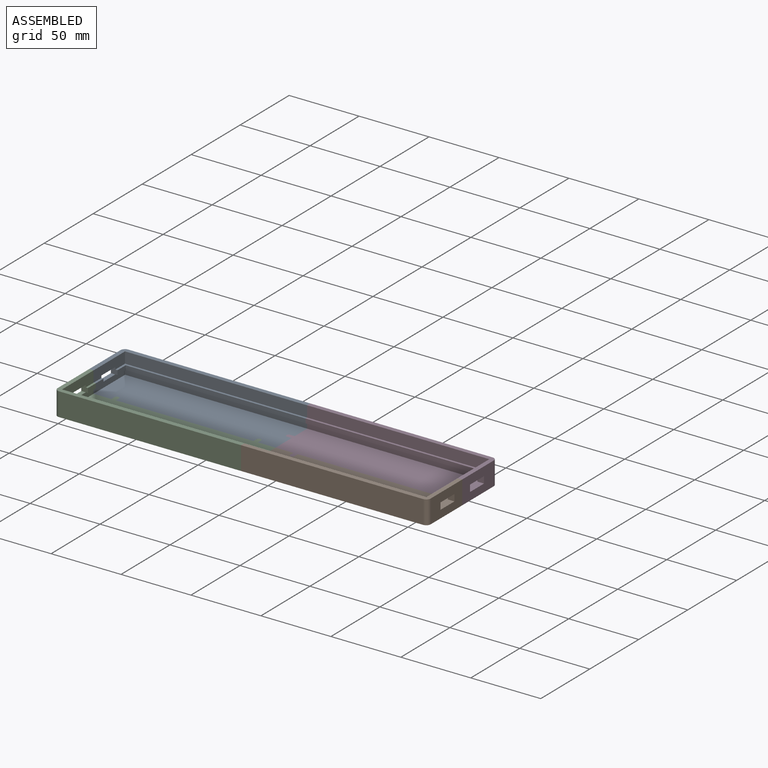
[diagram: assembled view]
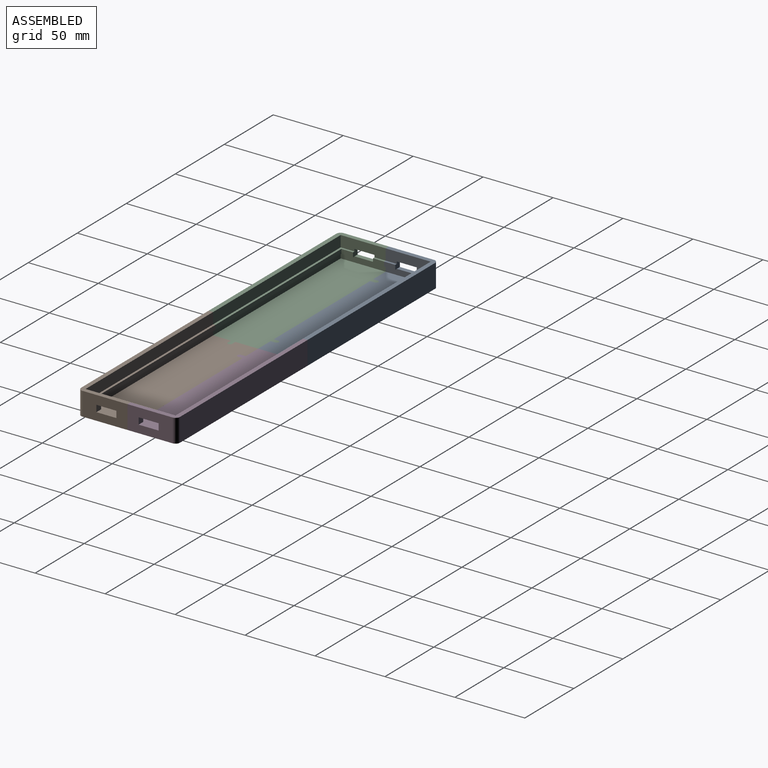
[diagram: assembled view, second angle]
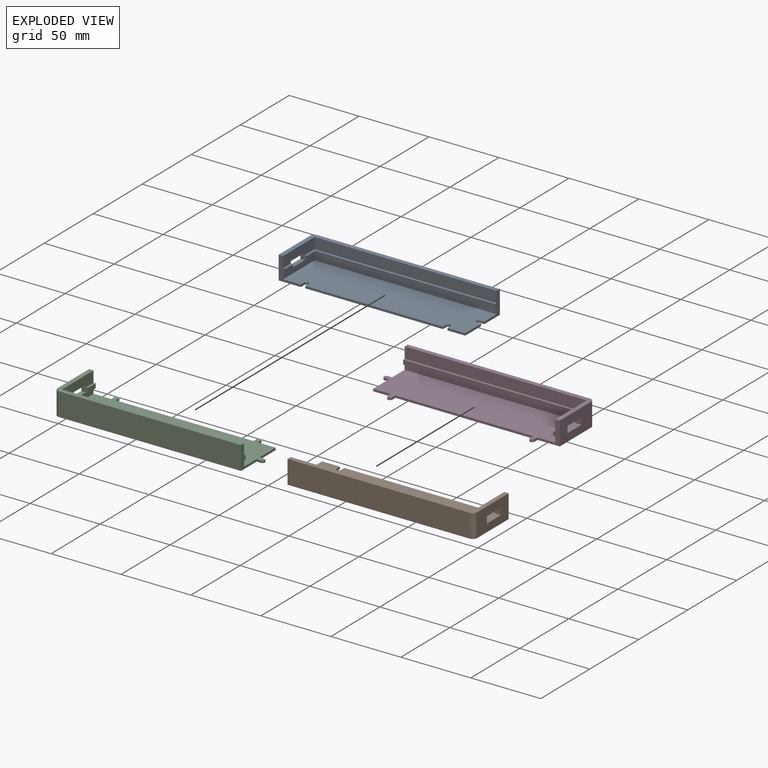
[diagram: exploded view]
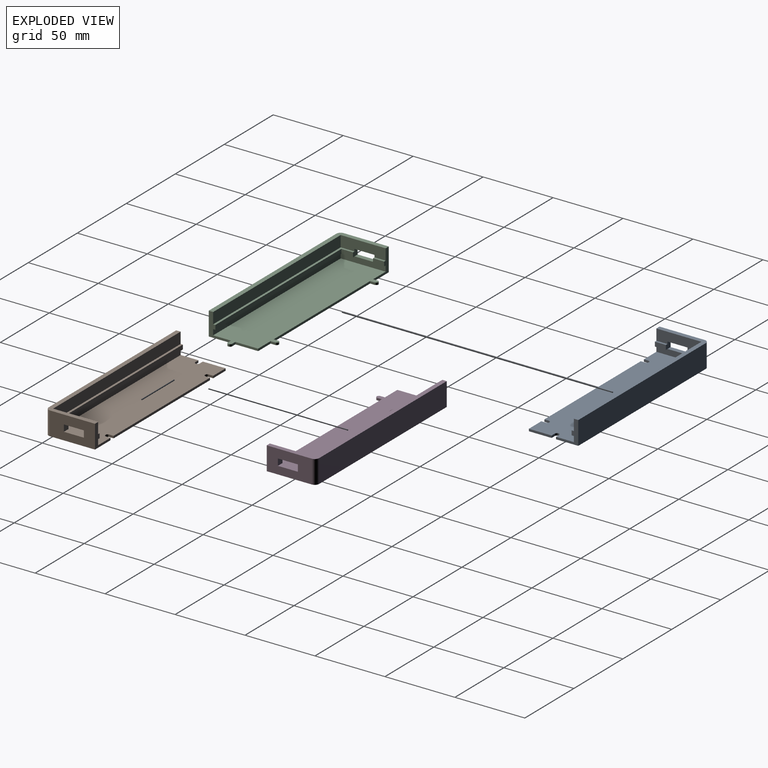
[diagram: exploded view, second angle]
ASSEMBLY  parts=4 mates=3
PART A: 35 faces, bbox 133.4x35.3x16.7 mm
  f0: plane 32.15x16.67mm, normal (-1,0,0), area 467.8mm2, adj f5,f8,f17,f18,f31,f32,f33,f34
  f1: plane 130.18x9.92mm, normal (0,0,-1), area 219.9mm2, adj f9,f11,f12,f13,f21,f32
  f2: plane 7.94x1.59mm, normal (0,0,1), area 12.6mm2, adj f3,f5,f10,f34
  f3: plane 7.94x3.18mm, normal (1,0,0), area 25.2mm2, adj f2,f5,f19,f34
  f4: plane 16.27x1.59mm, normal (1,0,0), area 25.8mm2, adj f7,f8,f14,f24
  f5: plane 16.67x15.88mm, normal (0,-1,0), area 78.1mm2, adj f0,f2,f3,f7,f8,f9,f10,f18
  f6: plane 98.43x1.59mm, normal (0,-1,0), area 156.2mm2, adj f7,f8,f27,f30
  f7: plane 130.18x32.15mm, normal (0,0,1), area 4142.6mm2, adj f4,f5,f6,f9,f12,f13,f14,f22
  f8: plane 133.35x35.32mm, normal (0,0,-1), area 4665.9mm2, adj f0,f4,f5,f6,f13,f14,f16,f17
  f9: plane 32.15x3.97mm, normal (1,0,0), area 127.6mm2, adj f1,f5,f7,f12,f19,f33
  f10: plane 32.15x7.94mm, normal (1,0,0), area 232.5mm2, adj f2,f5,f15,f18,f20,f31,f32,f34
  f11: plane 128.59x3.18mm, normal (0,-1,0), area 408.3mm2, adj f1,f13,f20,f21
  f12: plane 130.18x3.97mm, normal (0,-1,0), area 516.6mm2, adj f1,f7,f9,f13
  f13: plane 16.67x15.88mm, normal (1,0,0), area 78.1mm2, adj f1,f7,f8,f11,f12,f15,f16,f18
  f14: plane 12.7x1.59mm, normal (0,-1,0), area 20.2mm2, adj f4,f7,f8,f25
  f15: plane 130.18x7.94mm, normal (0,-1,0), area 1033.3mm2, adj f10,f13,f18,f20
  f16: plane 130.18x16.67mm, normal (0,1,0), area 2169.9mm2, adj f8,f13,f17,f18
  f17: cylinder r=3.17mm len=16.67mm, axis (0,0,-1), area 83.1mm2, adj f0,f8,f16,f18
  f18: plane 133.35x35.32mm, normal (0,0,1), area 523.3mm2, adj f0,f5,f10,f13,f15,f16,f17
  f19: plane 7.94x1.59mm, normal (0,0,-1), area 12.6mm2, adj f3,f5,f9,f34
  f20: plane 130.18x9.92mm, normal (0,0,1), area 219.9mm2, adj f10,f11,f13,f15,f21,f32
  f21: plane 8.33x3.18mm, normal (1,0,0), area 26.5mm2, adj f1,f11,f20,f32
  f22: plane 3.18x1.59mm, normal (0,-1,0), area 5mm2, adj f7,f8,f13,f23
  f23: cylinder r=1.59mm len=3.18mm, axis (0,0,1), area 7.9mm2, adj f7,f8,f22,f24
  f24: plane 3.18x1.59mm, normal (0,1,0), area 5mm2, adj f4,f7,f8,f23
  f25: plane 3.18x1.59mm, normal (-1,0,0), area 5mm2, adj f7,f8,f14,f26
  f26: cylinder r=1.59mm len=3.18mm, axis (0,0,1), area 7.9mm2, adj f7,f8,f25,f27
  f27: plane 3.18x1.59mm, normal (1,0,0), area 5mm2, adj f6,f7,f8,f26
  f28: cylinder r=1.59mm len=3.18mm, axis (0,0,1), area 7.9mm2, adj f7,f8,f29,f30
  f29: plane 3.18x1.59mm, normal (1,0,0), area 5mm2, adj f5,f7,f8,f28
  f30: plane 3.18x1.59mm, normal (-1,0,0), area 5mm2, adj f6,f7,f8,f28
  f31: plane 14.29x3.18mm, normal (0,0,-1), area 45.4mm2, adj f0,f10,f32,f34
  f32: plane 4.76x4.76mm, normal (0,-1,0), area 20.2mm2, adj f0,f1,f10,f20,f21,f31,f33
  f33: plane 14.29x3.18mm, normal (0,0,1), area 45.4mm2, adj f0,f9,f32,f34
  f34: plane 4.76x4.76mm, normal (0,1,0), area 20.2mm2, adj f0,f2,f3,f10,f19,f31,f33
PART B: same geometry as A
PART C: 35 faces, bbox 138.1x40.1x16.7 mm
  f0: plane 32.15x16.67mm, normal (-1,0,0), area 467.8mm2, adj f6,f12,f15,f17,f31,f32,f33,f34
  f1: plane 7.95x1.59mm, normal (0,0,-1), area 12.6mm2, adj f6,f7,f21,f33
  f2: plane 130.18x9.91mm, normal (0,0,1), area 219.9mm2, adj f3,f4,f8,f13,f20,f34
  f3: plane 8.32x3.18mm, normal (1,0,0), area 26.4mm2, adj f2,f18,f20,f34
  f4: plane 16.67x15.88mm, normal (1,0,0), area 78.1mm2, adj f2,f8,f11,f12,f14,f16,f17,f18
  f5: plane 98.43x1.59mm, normal (0,1,0), area 156.2mm2, adj f11,f12,f22,f26
  f6: plane 16.67x15.88mm, normal (0,1,0), area 78.1mm2, adj f0,f1,f7,f11,f12,f13,f17,f19
  f7: plane 32.15x3.97mm, normal (1,0,0), area 127.6mm2, adj f1,f6,f11,f14,f18,f31
  f8: plane 130.18x7.94mm, normal (0,1,0), area 1033.3mm2, adj f2,f4,f13,f17
  f9: plane 16.27x1.59mm, normal (1,0,0), area 25.8mm2, adj f10,f11,f12,f29
  f10: plane 12.7x1.59mm, normal (0,1,0), area 20.2mm2, adj f9,f11,f12,f27
  f11: plane 134.94x36.91mm, normal (0,0,1), area 4226.8mm2, adj f4,f5,f6,f7,f9,f10,f14,f22
  f12: plane 138.11x40.08mm, normal (0,0,-1), area 4750.1mm2, adj f0,f4,f5,f6,f9,f10,f15,f16
  f13: plane 32.15x7.94mm, normal (1,0,0), area 232.5mm2, adj f2,f6,f8,f17,f19,f32,f33,f34
  f14: plane 130.18x3.97mm, normal (0,1,0), area 516.6mm2, adj f4,f7,f11,f18
  f15: cylinder r=3.17mm len=16.67mm, axis (0,0,-1), area 83.1mm2, adj f0,f12,f16,f17
  f16: plane 130.18x16.67mm, normal (0,-1,0), area 2169.9mm2, adj f4,f12,f15,f17
  f17: plane 133.35x35.32mm, normal (0,0,1), area 523.3mm2, adj f0,f4,f6,f8,f13,f15,f16
  f18: plane 130.18x9.91mm, normal (0,0,-1), area 219.9mm2, adj f3,f4,f7,f14,f20,f34
  f19: plane 7.95x1.59mm, normal (0,0,1), area 12.6mm2, adj f6,f13,f21,f33
  f20: plane 128.59x3.18mm, normal (0,1,0), area 408.3mm2, adj f2,f3,f4,f18
  f21: plane 7.95x3.18mm, normal (1,0,0), area 25.2mm2, adj f1,f6,f19,f33
  f22: plane 3.18x1.59mm, normal (1,0,0), area 5mm2, adj f5,f11,f12,f23
  f23: cylinder r=1.59mm len=3.18mm, axis (0,0,1), area 7.9mm2, adj f11,f12,f22,f24
  f24: plane 3.18x1.59mm, normal (-1,0,0), area 5mm2, adj f6,f11,f12,f23
  f25: cylinder r=1.59mm len=3.18mm, axis (0,0,1), area 7.9mm2, adj f11,f12,f26,f27
  f26: plane 3.18x1.59mm, normal (-1,0,0), area 5mm2, adj f5,f11,f12,f25
  f27: plane 3.18x1.59mm, normal (1,0,0), area 5mm2, adj f10,f11,f12,f25
  f28: cylinder r=1.59mm len=3.18mm, axis (0,0,1), area 7.9mm2, adj f11,f12,f29,f30
  f29: plane 3.18x1.59mm, normal (0,1,0), area 5mm2, adj f9,f11,f12,f28
  f30: plane 3.18x1.59mm, normal (0,-1,0), area 5mm2, adj f4,f11,f12,f28
  f31: plane 14.29x3.18mm, normal (0,0,1), area 45.4mm2, adj f0,f7,f33,f34
  f32: plane 14.29x3.18mm, normal (0,0,-1), area 45.4mm2, adj f0,f13,f33,f34
  f33: plane 4.76x4.76mm, normal (0,-1,0), area 20.2mm2, adj f0,f1,f13,f19,f21,f31,f32
  f34: plane 4.76x4.76mm, normal (0,1,0), area 20.2mm2, adj f0,f2,f3,f13,f18,f31,f32
PART D: same geometry as C
PLACE A t=(-34.57,1.76,-17.38)mm
PLACE B rot(axis=(0,0,-1),180deg) t=(95.61,-30.39,-17.38)mm
PLACE C t=(-34.57,-30.39,-17.38)mm
PLACE D rot(axis=(0,0,-1),180deg) t=(95.61,1.76,-17.38)mm
MATE fastened B.f5 <-> D.f6  axis (0,1,0) through (163.87,-14.32,-9.05)mm
MATE fastened C.f4 <-> B.f13  axis (1,0,0) through (30.52,-49.64,-9.05)mm
MATE fastened A.f5 <-> C.f6  axis (0,-1,0) through (-102.83,-14.32,-9.05)mm
